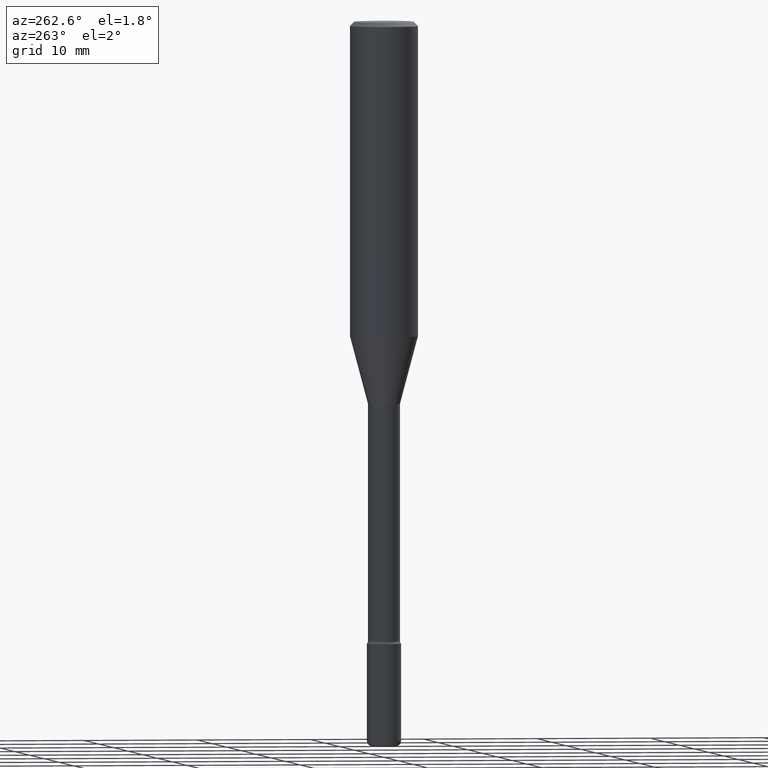
[diagram: clean part render]
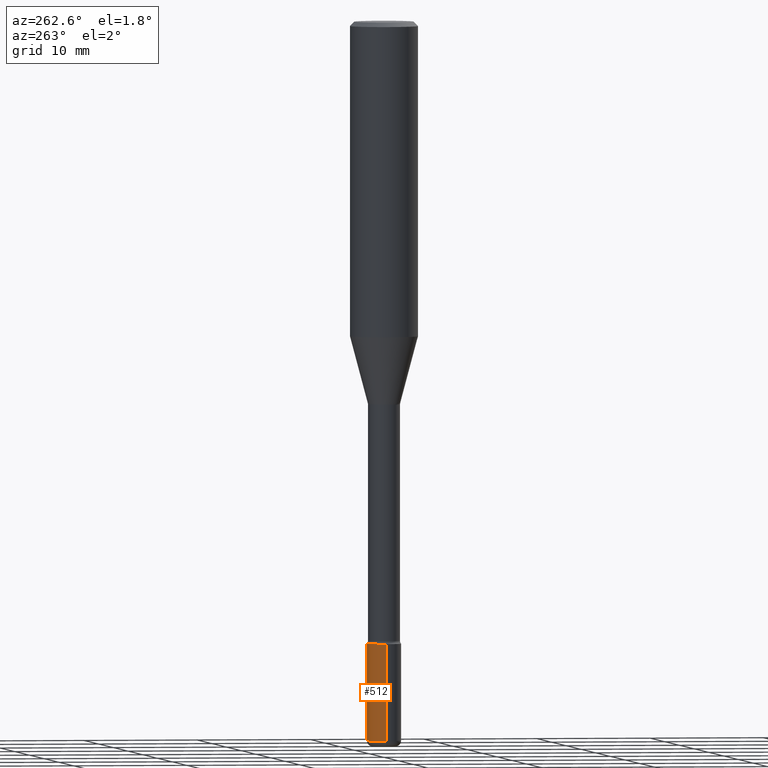
[diagram: same view with one face highlighted and labeled with its STEP entity id]
A machine part, auxiliary view. The second image highlights one B-rep face of the part: STEP entity #512.
In plain terms, the highlighted cylindrical surface (edge-blend (fillet) strip) has radius 1.4999 mm, axis along (-0, 0, 1).
Its self-contained STEP definition (entity closure, byte-faithful):
#18 = AXIS2_PLACEMENT_3D ( 'NONE', #410, #502, #237 ) ;
#21 = EDGE_CURVE ( 'NONE', #136, #329, #30, .T. ) ;
#24 = ORIENTED_EDGE ( 'NONE', *, *, #406, .T. ) ;
#30 = LINE ( 'NONE', #411, #276 ) ;
#39 = CARTESIAN_POINT ( 'NONE',  ( 0.05905000000000008159, -9.072265110850027889E-15, -2.480300000000000171 ) ) ;
#75 = DIRECTION ( 'NONE',  ( -2.445468806185136877E-29, 3.491481338843145188E-15, 1.000000000000000000 ) ) ;
#76 = EDGE_CURVE ( 'NONE', #440, #561, #554, .T. ) ;
#102 = DIRECTION ( 'NONE',  ( -2.445468806185136597E-29, 3.491481338843145583E-15, 1.000000000000000000 ) ) ;
#111 = CARTESIAN_POINT ( 'NONE',  ( -0.05904999999999999832, -7.656220851277857871E-15, -2.145700000000000163 ) ) ;
#112 = CARTESIAN_POINT ( 'NONE',  ( -0.05904999999999999832, 4.195754854663391478E-16, -2.904631170795521892E-30 ) ) ;
#123 = AXIS2_PLACEMENT_3D ( 'NONE', #481, #524, #220 ) ;
#136 = VERTEX_POINT ( 'NONE', #39 ) ;
#155 = EDGE_LOOP ( 'NONE', ( #24, #556, #416, #541 ) ) ;
#177 = AXIS2_PLACEMENT_3D ( 'NONE', #183, #102, #363 ) ;
#183 = CARTESIAN_POINT ( 'NONE',  ( 6.065496279980994755E-29, -8.659921164732655335E-15, -2.480300000000000171 ) ) ;
#194 = EDGE_CURVE ( 'NONE', #329, #561, #423, .T. ) ;
#203 = CYLINDRICAL_SURFACE ( 'NONE', #18, 0.05904999999999999832 ) ;
#220 = DIRECTION ( 'NONE',  ( 1.000000000000000000, -6.982962677686273021E-15, 0.000000000000000000 ) ) ;
#237 = DIRECTION ( 'NONE',  ( 1.000000000000000000, -6.982962677686266711E-15, 4.876176775795936353E-29 ) ) ;
#276 = VECTOR ( 'NONE', #75, 39.37007874015748143 ) ;
#315 = VECTOR ( 'NONE', #378, 39.37007874015748143 ) ;
#324 = FACE_OUTER_BOUND ( 'NONE', #155, .T. ) ;
#329 = VERTEX_POINT ( 'NONE', #534 ) ;
#330 = CARTESIAN_POINT ( 'NONE',  ( -0.05905000000000008159, -8.240345679266315842E-15, -2.480300000000000171 ) ) ;
#363 = DIRECTION ( 'NONE',  ( 1.000000000000000000, -6.982962677686273021E-15, 0.000000000000000000 ) ) ;
#378 = DIRECTION ( 'NONE',  ( -2.445468806185136877E-29, 3.491481338843145188E-15, 1.000000000000000000 ) ) ;
#406 = EDGE_CURVE ( 'NONE', #136, #440, #424, .T. ) ;
#410 = CARTESIAN_POINT ( 'NONE',  ( 0.000000000000000000, 0.000000000000000000, 0.000000000000000000 ) ) ;
#411 = CARTESIAN_POINT ( 'NONE',  ( 0.05904999999999999832, -4.123439461173740327E-16, 2.879382386107500220E-30 ) ) ;
#416 = ORIENTED_EDGE ( 'NONE', *, *, #194, .F. ) ;
#423 = CIRCLE ( 'NONE', #123, 0.05904999999999999832 ) ;
#424 = CIRCLE ( 'NONE', #177, 0.05904999999999999832 ) ;
#440 = VERTEX_POINT ( 'NONE', #330 ) ;
#481 = CARTESIAN_POINT ( 'NONE',  ( 5.247242417431447608E-29, -7.491671508755737816E-15, -2.145700000000000163 ) ) ;
#502 = DIRECTION ( 'NONE',  ( -2.445468806185136597E-29, 3.491481338843145583E-15, 1.000000000000000000 ) ) ;
#512 = ADVANCED_FACE ( 'NONE', ( #324 ), #203, .T. ) ;
#524 = DIRECTION ( 'NONE',  ( -2.445468806185136597E-29, 3.491481338843145583E-15, 1.000000000000000000 ) ) ;
#534 = CARTESIAN_POINT ( 'NONE',  ( 0.05904999999999999832, -7.904015454873111947E-15, -2.145700000000000163 ) ) ;
#541 = ORIENTED_EDGE ( 'NONE', *, *, #21, .F. ) ;
#554 = LINE ( 'NONE', #112, #315 ) ;
#556 = ORIENTED_EDGE ( 'NONE', *, *, #76, .T. ) ;
#561 = VERTEX_POINT ( 'NONE', #111 ) ;